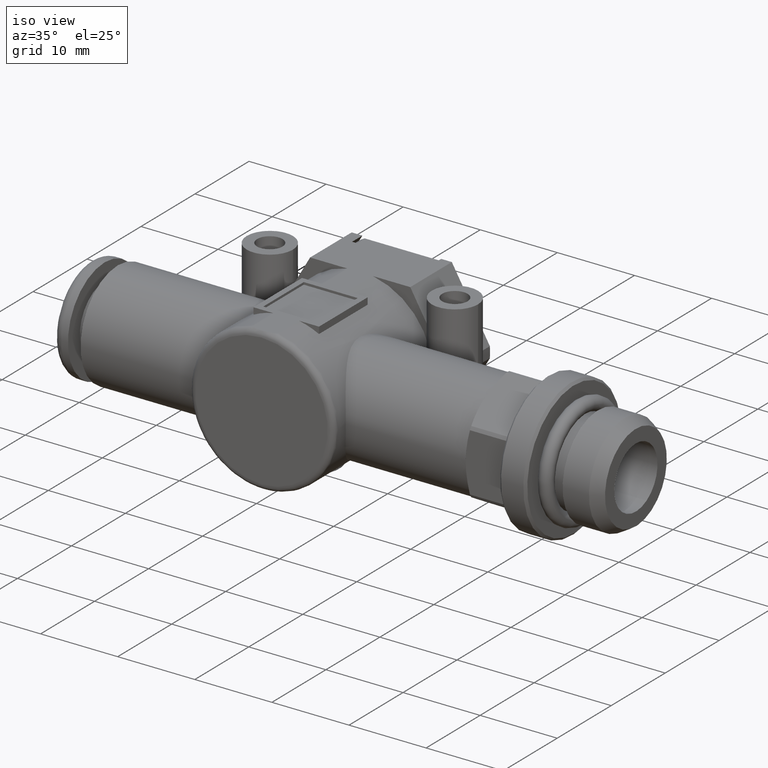
[diagram: clean part render]
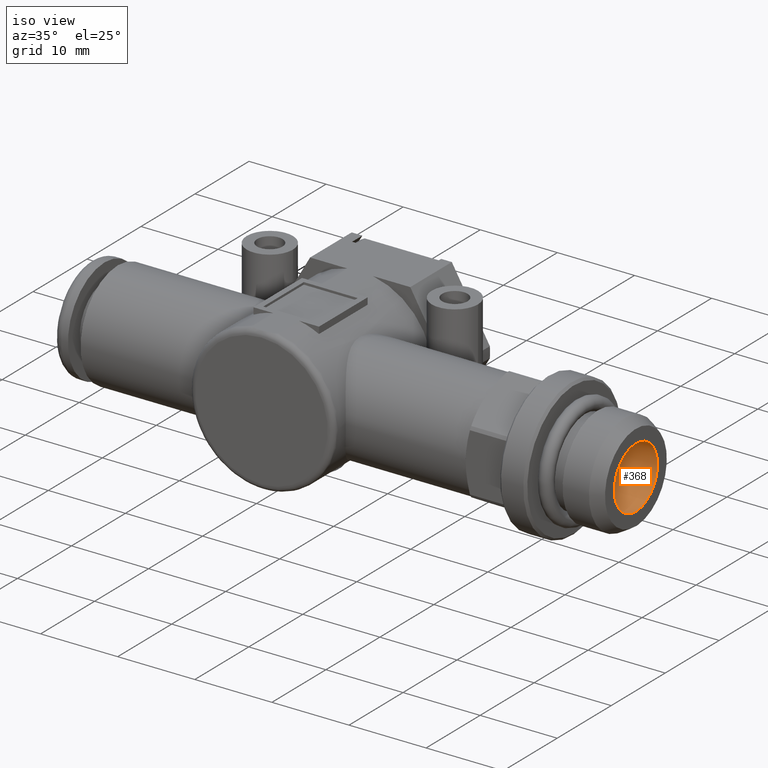
[diagram: same view with one face highlighted and labeled with its STEP entity id]
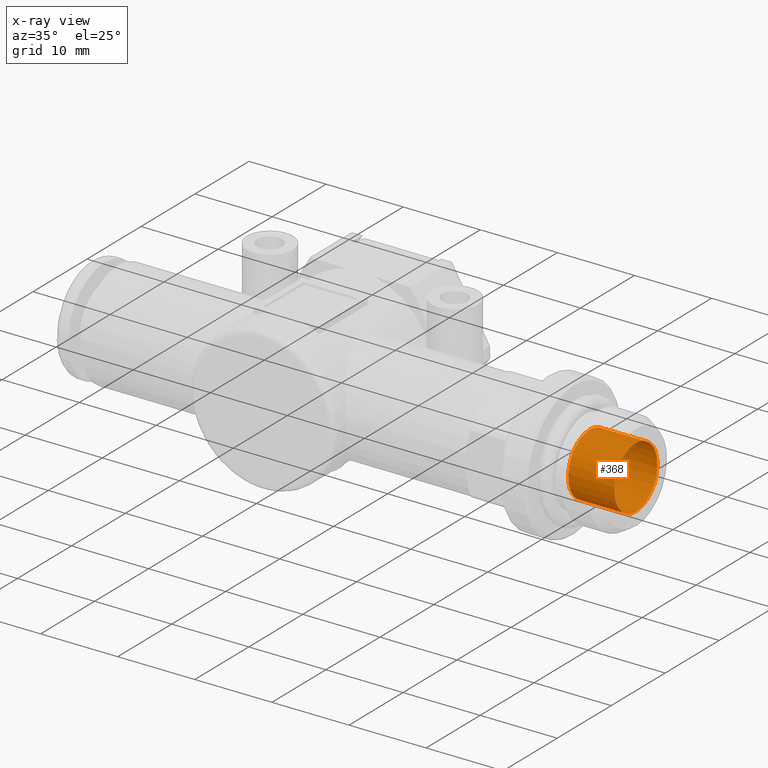
[diagram: x-ray of the same camera — body ghosted, the highlighted face saturated]
A machine part, iso view. The second image highlights one B-rep face of the part: STEP entity #368.
The next image is the same camera in x-ray: the body ghosted, the highlighted face saturated — about 0% of this face is hidden behind the body in this view.
In plain terms, the highlighted cylindrical surface (bore or boss wall) has radius 4 mm, axis along (1, 0, 0).
Its self-contained STEP definition (entity closure, byte-faithful):
#368 = ADVANCED_FACE( '', ( #793, #794 ), #795, .F. );
#793 = FACE_OUTER_BOUND( '', #1330, .T. );
#794 = FACE_OUTER_BOUND( '', #1331, .T. );
#795 = CYLINDRICAL_SURFACE( '', #1332, 4.00000000000000 );
#1330 = EDGE_LOOP( '', ( #2130 ) );
#1331 = EDGE_LOOP( '', ( #2131 ) );
#1332 = AXIS2_PLACEMENT_3D( '', #2132, #2133, #2134 );
#2130 = ORIENTED_EDGE( '', *, *, #3098, .F. );
#2131 = ORIENTED_EDGE( '', *, *, #3099, .T. );
#2132 = CARTESIAN_POINT( '', ( 11.2000000000000, 0.000000000000000, 0.000000000000000 ) );
#2133 = DIRECTION( '', ( -1.00000000000000, -0.000000000000000, 0.000000000000000 ) );
#2134 = DIRECTION( '', ( -0.000000000000000, 0.000000000000000, -1.00000000000000 ) );
#3098 = EDGE_CURVE( '', #3708, #3708, #3709, .T. );
#3099 = EDGE_CURVE( '', #3710, #3710, #3711, .T. );
#3708 = VERTEX_POINT( '', #4919 );
#3709 = CIRCLE( '', #4920, 4.00000000000000 );
#3710 = VERTEX_POINT( '', #4921 );
#3711 = CIRCLE( '', #4922, 4.00000000000000 );
#4919 = CARTESIAN_POINT( '', ( -8.00000000000000, 0.000000000000000, -4.00000000000000 ) );
#4920 = AXIS2_PLACEMENT_3D( '', #5733, #5734, #5735 );
#4921 = CARTESIAN_POINT( '', ( -2.00000000000000, 0.000000000000000, -4.00000000000000 ) );
#4922 = AXIS2_PLACEMENT_3D( '', #5736, #5737, #5738 );
#5733 = CARTESIAN_POINT( '', ( -8.00000000000000, 0.000000000000000, 0.000000000000000 ) );
#5734 = DIRECTION( '', ( 1.00000000000000, 0.000000000000000, -0.000000000000000 ) );
#5735 = DIRECTION( '', ( -0.000000000000000, 0.000000000000000, -1.00000000000000 ) );
#5736 = CARTESIAN_POINT( '', ( -2.00000000000000, 0.000000000000000, 0.000000000000000 ) );
#5737 = DIRECTION( '', ( 1.00000000000000, 0.000000000000000, -0.000000000000000 ) );
#5738 = DIRECTION( '', ( -0.000000000000000, 0.000000000000000, -1.00000000000000 ) );